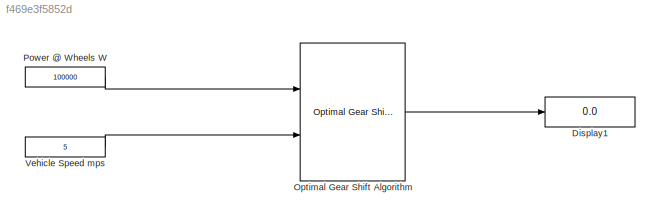
MODEL slx_f469e3f5852d
KIND model
CONFIG AbsTol = auto
CONFIG EnableMultiTasking = off
CONFIG FixedStep = sim_t_step
CONFIG MaxStep = auto
CONFIG MinStep = auto
CONFIG RelTol = 1e-3
CONFIG SampleTimeConstraint = Unconstrained
CONFIG Solver = ode2
CONFIG SolverName = ode2
CONFIG StartTime = 0.0
CONFIG StopTime = 1
BLOCK [Display] Display1
  Decimation = 1
  Ports = [1]
BLOCK [Reference] Optimal Gear Shift Algorithm  REF=platooning_custom_blocks/Optimal Gear Shift Algorithm  (lib defined in slx_64fc7da9e19a)
  Ports = [2, 1]
  SourceBlock = platooning_custom_blocks/Optimal Gear Shift Algorithm
BLOCK [Constant] Power @ Wheels W
  Value = 100000
BLOCK [Constant] Vehicle Speed mps
  Value = 5
LINE Optimal Gear Shift Algorithm:1 -> Display1:1
LINE Power @ Wheels W:1 -> Optimal Gear Shift Algorithm:1
LINE Vehicle Speed mps:1 -> Optimal Gear Shift Algorithm:2
